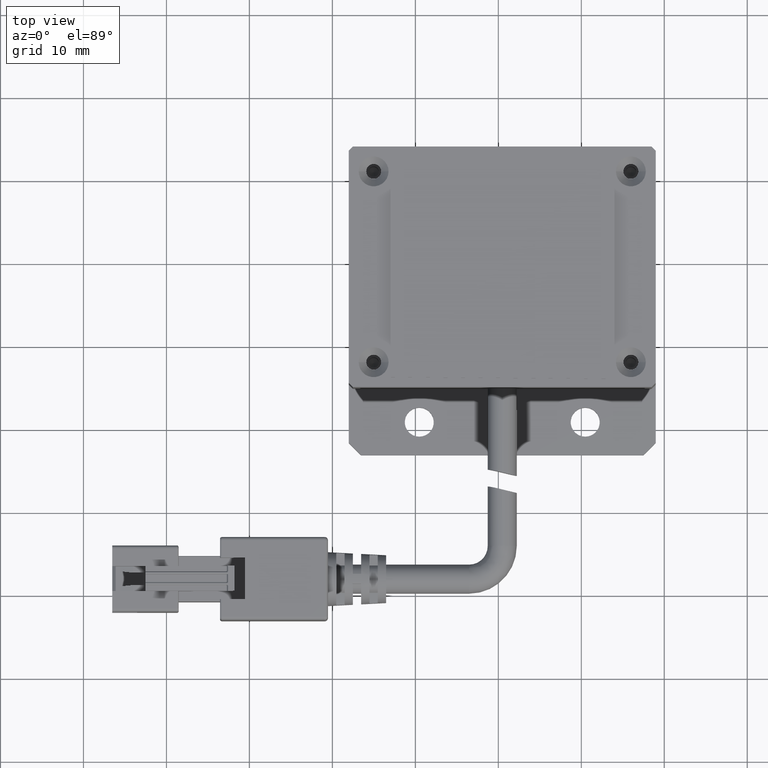
[diagram: clean part render]
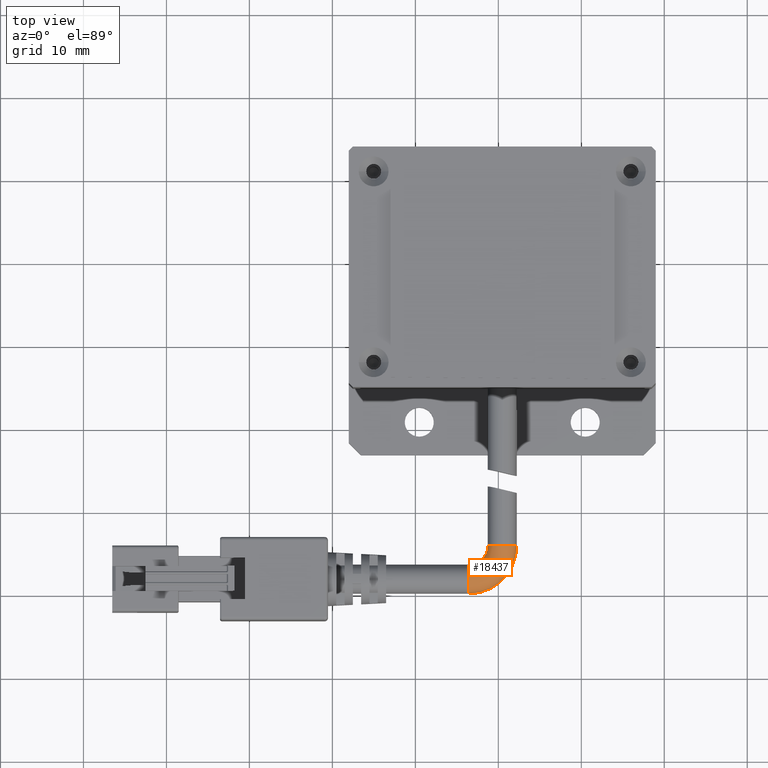
[diagram: same view with one face highlighted and labeled with its STEP entity id]
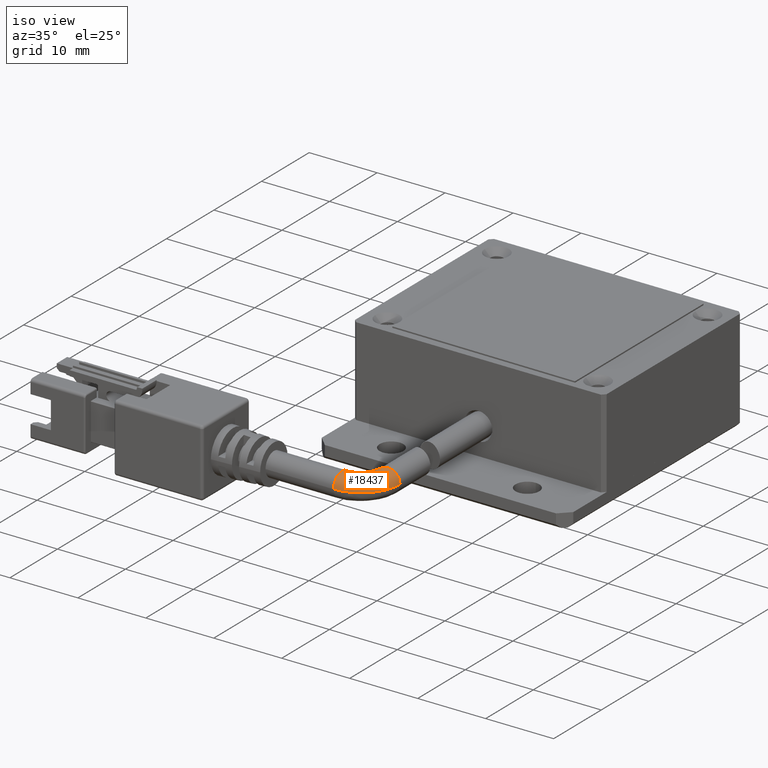
[diagram: same view with one face highlighted and labeled with its STEP entity id]
A machine part, top view. The second image highlights one B-rep face of the part: STEP entity #18437.
A second angle (iso view) of the same face is appended — the face is thin or edge-on in the first view.
In plain terms, the highlighted face is a freeform B-spline surface patch.
Its self-contained STEP definition (entity closure, byte-faithful):
#905 = AXIS2_PLACEMENT_3D ( 'NONE', #11876, #26190, #13924 ) ;
#950 = AXIS2_PLACEMENT_3D ( 'NONE', #10200, #24553, #12290 ) ;
#1143 = CARTESIAN_POINT ( 'NONE',  ( -3.529400534555176400, -39.80364642993505700, 3.999999999983630400 ) ) ;
#1347 = CARTESIAN_POINT ( 'NONE',  ( -1.279400534555176400, -34.05364642993505000, 3.999999999983630400 ) ) ;
#1753 = CARTESIAN_POINT ( 'NONE',  ( -0.1611285182004746900, -39.80364642993505700, 7.499999999983630900 ) ) ;
#1910 = VERTEX_POINT ( 'NONE', #1143 ) ;
#2165 = ORIENTED_EDGE ( 'NONE', *, *, #12482, .T. ) ;
#2882 = EDGE_LOOP ( 'NONE', ( #6496, #8865, #26240, #17363, #2165 ) ) ;
#3814 = CARTESIAN_POINT ( 'NONE',  ( 2.220599465444825300, -34.05364642993505000, 7.499999999983630000 ) ) ;
#4152 = EDGE_CURVE ( 'NONE', #13467, #16633, #16475, .T. ) ;
#5141 = CIRCLE ( 'NONE', #950, 1.750000000000001600 ) ;
#5249 = CARTESIAN_POINT ( 'NONE',  ( -3.529400534555176400, -36.30364642993505700, 3.999999999983630400 ) ) ;
#5568 =( BOUNDED_SURFACE ( )  B_SPLINE_SURFACE ( 3, 3, ( 
 ( #24184, #20158, #7842, #22190 ),
 ( #9921, #24267, #12001, #26305 ),
 ( #14047, #1753, #16115, #3814 ),
 ( #18176, #5869, #20242, #7925 ) ),
 .UNSPECIFIED., .F., .F., .F. ) 
 B_SPLINE_SURFACE_WITH_KNOTS ( ( 4, 4 ),
 ( 4, 4 ),
 ( 0.0000000000000000000, 1.000000000000000000 ),
 ( 0.0000000000000000000, 1.000000000000000000 ),
 .UNSPECIFIED. ) 
 GEOMETRIC_REPRESENTATION_ITEM ( )  RATIONAL_B_SPLINE_SURFACE ( (
 ( 1.000000000000000000, 0.8047378541243649400, 0.8047378541243649400, 1.000000000000000000),
 ( 0.3333333333333333700, 0.2682459513747883500, 0.2682459513747883500, 0.3333333333333333700),
 ( 0.3333333333333333700, 0.2682459513747883500, 0.2682459513747883500, 0.3333333333333333700),
 ( 1.000000000000000000, 0.8047378541243649400, 0.8047378541243649400, 1.000000000000000000) ) ) 
 REPRESENTATION_ITEM ( '' )  SURFACE ( )  );
#5869 = CARTESIAN_POINT ( 'NONE',  ( -0.1611285182004746400, -39.80364642993505000, 3.999999999983630900 ) ) ;
#6496 = ORIENTED_EDGE ( 'NONE', *, *, #4152, .F. ) ;
#7222 = CARTESIAN_POINT ( 'NONE',  ( 0.4705994654448236700, -34.05364642993505000, 3.999999999983630400 ) ) ;
#7842 = CARTESIAN_POINT ( 'NONE',  ( -1.279400534555173800, -35.37166591459558200, 3.999999999983630900 ) ) ;
#7925 = CARTESIAN_POINT ( 'NONE',  ( 2.220599465444825300, -34.05364642993505000, 3.999999999983630400 ) ) ;
#8056 = EDGE_CURVE ( 'NONE', #1910, #13467, #5141, .T. ) ;
#8865 = ORIENTED_EDGE ( 'NONE', *, *, #8056, .F. ) ;
#9300 = DIRECTION ( 'NONE',  ( 1.000000000000000000, 0.0000000000000000000, 0.0000000000000000000 ) ) ;
#9921 = CARTESIAN_POINT ( 'NONE',  ( -3.529400534555177300, -36.30364642993504300, 7.499999999983630000 ) ) ;
#10200 = CARTESIAN_POINT ( 'NONE',  ( -3.529400534555176400, -38.05364642993505700, 3.999999999983630400 ) ) ;
#10238 = DIRECTION ( 'NONE',  ( -5.345529420184392100E-049, 1.232595164407830900E-032, 1.000000000000000000 ) ) ;
#11334 = VERTEX_POINT ( 'NONE', #19730 ) ;
#11876 = CARTESIAN_POINT ( 'NONE',  ( 0.4705994654448236700, -34.05364642993505000, 3.999999999983630400 ) ) ;
#12001 = CARTESIAN_POINT ( 'NONE',  ( -1.279400534555174000, -35.37166591459558900, 7.499999999983630900 ) ) ;
#12005 = CARTESIAN_POINT ( 'NONE',  ( -3.529400534555176400, -34.05364642993505000, 3.999999999983630400 ) ) ;
#12290 = DIRECTION ( 'NONE',  ( 0.0000000000000000000, -1.000000000000000000, 0.0000000000000000000 ) ) ;
#12482 = EDGE_CURVE ( 'NONE', #24563, #16633, #23037, .T. ) ;
#13467 = VERTEX_POINT ( 'NONE', #5249 ) ;
#13613 = AXIS2_PLACEMENT_3D ( 'NONE', #7222, #21542, #9300 ) ;
#13645 = CARTESIAN_POINT ( 'NONE',  ( 0.4705994654448234500, -34.05364642993505000, 5.749999999983630900 ) ) ;
#13924 = DIRECTION ( 'NONE',  ( 1.000000000000000000, 0.0000000000000000000, 0.0000000000000000000 ) ) ;
#14047 = CARTESIAN_POINT ( 'NONE',  ( -3.529400534555177300, -39.80364642993505700, 7.499999999983630000 ) ) ;
#14052 = DIRECTION ( 'NONE',  ( 0.0000000000000000000, 1.000000000000000000, 0.0000000000000000000 ) ) ;
#14635 = CIRCLE ( 'NONE', #22242, 5.749999999999998200 ) ;
#14830 = FACE_OUTER_BOUND ( 'NONE', #2882, .T. ) ;
#15738 = CIRCLE ( 'NONE', #13613, 1.749999999999999800 ) ;
#16115 = CARTESIAN_POINT ( 'NONE',  ( 2.220599465444824900, -37.42191844628975200, 7.499999999983630900 ) ) ;
#16475 = CIRCLE ( 'NONE', #18869, 2.249999999999995100 ) ;
#16633 = VERTEX_POINT ( 'NONE', #1347 ) ;
#17280 = EDGE_CURVE ( 'NONE', #1910, #11334, #14635, .T. ) ;
#17363 = ORIENTED_EDGE ( 'NONE', *, *, #20928, .T. ) ;
#18176 = CARTESIAN_POINT ( 'NONE',  ( -3.529400534555177300, -39.80364642993505000, 3.999999999983630400 ) ) ;
#18437 = ADVANCED_FACE ( 'NONE', ( #14830 ), #5568, .T. ) ;
#18869 = AXIS2_PLACEMENT_3D ( 'NONE', #22518, #10238, #24590 ) ;
#19730 = CARTESIAN_POINT ( 'NONE',  ( 2.220599465444822700, -34.05364642993505000, 3.999999999983630400 ) ) ;
#20158 = CARTESIAN_POINT ( 'NONE',  ( -2.211381049894643800, -36.30364642993505000, 3.999999999983630900 ) ) ;
#20242 = CARTESIAN_POINT ( 'NONE',  ( 2.220599465444825300, -37.42191844628975200, 3.999999999983630900 ) ) ;
#20928 = EDGE_CURVE ( 'NONE', #11334, #24563, #15738, .T. ) ;
#21542 = DIRECTION ( 'NONE',  ( -1.836970198721029700E-016, -1.000000000000000000, 1.232595164407830900E-032 ) ) ;
#22190 = CARTESIAN_POINT ( 'NONE',  ( -1.279400534555177800, -34.05364642993504300, 3.999999999983630400 ) ) ;
#22242 = AXIS2_PLACEMENT_3D ( 'NONE', #12005, #26306, #14052 ) ;
#22518 = CARTESIAN_POINT ( 'NONE',  ( -3.529400534555176400, -34.05364642993505000, 3.999999999983630400 ) ) ;
#23037 = CIRCLE ( 'NONE', #905, 1.749999999999999800 ) ;
#24184 = CARTESIAN_POINT ( 'NONE',  ( -3.529400534555177300, -36.30364642993505000, 3.999999999983630400 ) ) ;
#24267 = CARTESIAN_POINT ( 'NONE',  ( -2.211381049894643800, -36.30364642993505000, 7.499999999983630900 ) ) ;
#24553 = DIRECTION ( 'NONE',  ( -1.000000000000000000, -6.162975822039154700E-033, -5.345529420184391300E-049 ) ) ;
#24563 = VERTEX_POINT ( 'NONE', #13645 ) ;
#24590 = DIRECTION ( 'NONE',  ( 0.0000000000000000000, 1.000000000000000000, 0.0000000000000000000 ) ) ;
#26190 = DIRECTION ( 'NONE',  ( -1.836970198721029700E-016, -1.000000000000000000, 1.232595164407830900E-032 ) ) ;
#26240 = ORIENTED_EDGE ( 'NONE', *, *, #17280, .T. ) ;
#26305 = CARTESIAN_POINT ( 'NONE',  ( -1.279400534555178000, -34.05364642993504300, 7.499999999983630000 ) ) ;
#26306 = DIRECTION ( 'NONE',  ( -5.345529420184392100E-049, 1.232595164407830900E-032, 1.000000000000000000 ) ) ;